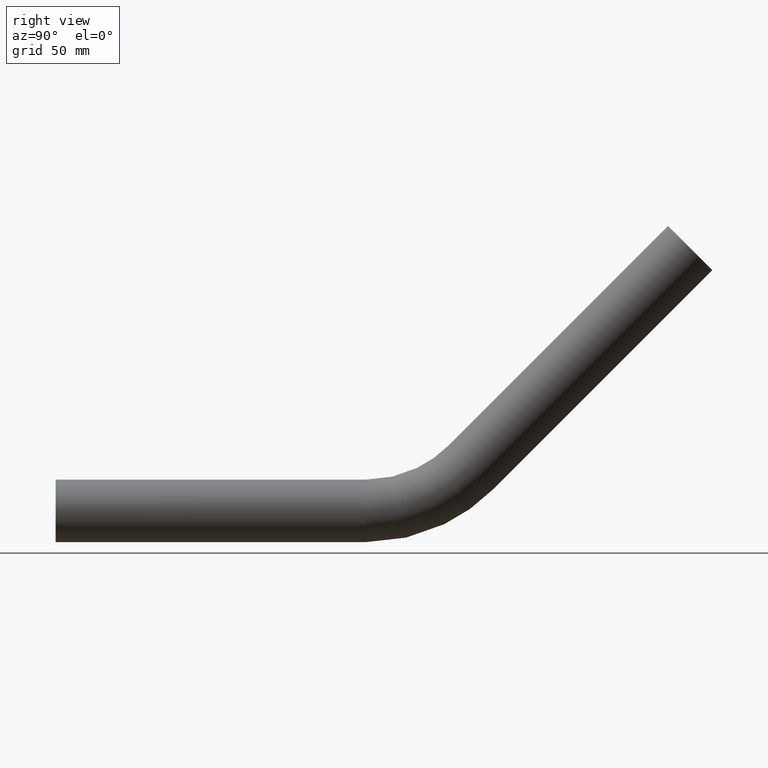
[diagram: clean part render]
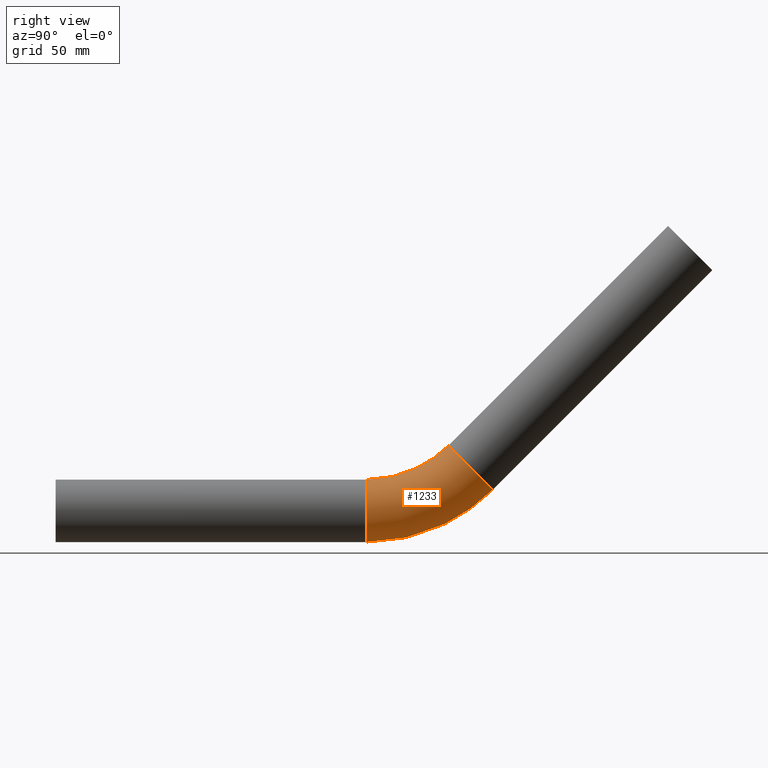
[diagram: same view with one face highlighted and labeled with its STEP entity id]
A machine part, right view. The second image highlights one B-rep face of the part: STEP entity #1233.
In plain terms, the highlighted toroidal blend (fillet) surface has major radius 100 mm and minor (blend) radius 21.2 mm.
Its self-contained STEP definition (entity closure, byte-faithful):
#1192 = AXIS2_PLACEMENT_3D ( 'NONE', #11311, #2425, #4196 ) ;
#1233 = ADVANCED_FACE ( 'NONE', ( #6450, #4083 ), #9479, .T. ) ;
#1727 = VERTEX_POINT ( 'NONE', #9424 ) ;
#1856 = AXIS2_PLACEMENT_3D ( 'NONE', #2134, #5643, #6637 ) ;
#1863 = EDGE_CURVE ( 'NONE', #1727, #1727, #7524, .T. ) ;
#2134 = CARTESIAN_POINT ( 'NONE',  ( 0.000000000000000000, 281.4407699487823606, 29.28932188134533732 ) ) ;
#2266 = EDGE_LOOP ( 'NONE', ( #4382 ) ) ;
#2425 = DIRECTION ( 'NONE',  ( 0.000000000000000000, 1.000000000000000000, 0.000000000000000000 ) ) ;
#3055 = EDGE_CURVE ( 'NONE', #11495, #11495, #7615, .T. ) ;
#4016 = DIRECTION ( 'NONE',  ( 0.000000000000000000, 0.000000000000000000, -1.000000000000000000 ) ) ;
#4083 = FACE_OUTER_BOUND ( 'NONE', #7148, .T. ) ;
#4196 = DIRECTION ( 'NONE',  ( 0.000000000000000000, 0.000000000000000000, 1.000000000000000000 ) ) ;
#4382 = ORIENTED_EDGE ( 'NONE', *, *, #3055, .T. ) ;
#4948 = DIRECTION ( 'NONE',  ( 1.000000000000000000, 0.000000000000000000, -0.000000000000000000 ) ) ;
#5643 = DIRECTION ( 'NONE',  ( 0.000000000000000000, 0.7071067811865465735, 0.7071067811865484609 ) ) ;
#5701 = CARTESIAN_POINT ( 'NONE',  ( 0.000000000000000000, 210.7300918301275203, 100.0000000000000000 ) ) ;
#6450 = FACE_OUTER_BOUND ( 'NONE', #2266, .T. ) ;
#6637 = DIRECTION ( 'NONE',  ( 0.000000000000000000, -0.7071067811865482389, 0.7071067811865466846 ) ) ;
#7148 = EDGE_LOOP ( 'NONE', ( #8119 ) ) ;
#7524 = CIRCLE ( 'NONE', #1856, 21.19999999999999574 ) ;
#7615 = CIRCLE ( 'NONE', #1192, 21.19999999999999929 ) ;
#8119 = ORIENTED_EDGE ( 'NONE', *, *, #1863, .F. ) ;
#8528 = AXIS2_PLACEMENT_3D ( 'NONE', #5701, #4948, #4016 ) ;
#9424 = CARTESIAN_POINT ( 'NONE',  ( 0.000000000000000000, 266.4501061876275685, 44.27998564250012237 ) ) ;
#9479 = TOROIDAL_SURFACE ( 'NONE', #8528, 100.0000000000000000, 21.19999999999999929 ) ;
#10316 = CARTESIAN_POINT ( 'NONE',  ( 0.000000000000000000, 210.7300918301275203, 21.19999999999999929 ) ) ;
#11311 = CARTESIAN_POINT ( 'NONE',  ( 0.000000000000000000, 210.7300918301275203, -7.464487448530533640E-29 ) ) ;
#11495 = VERTEX_POINT ( 'NONE', #10316 ) ;